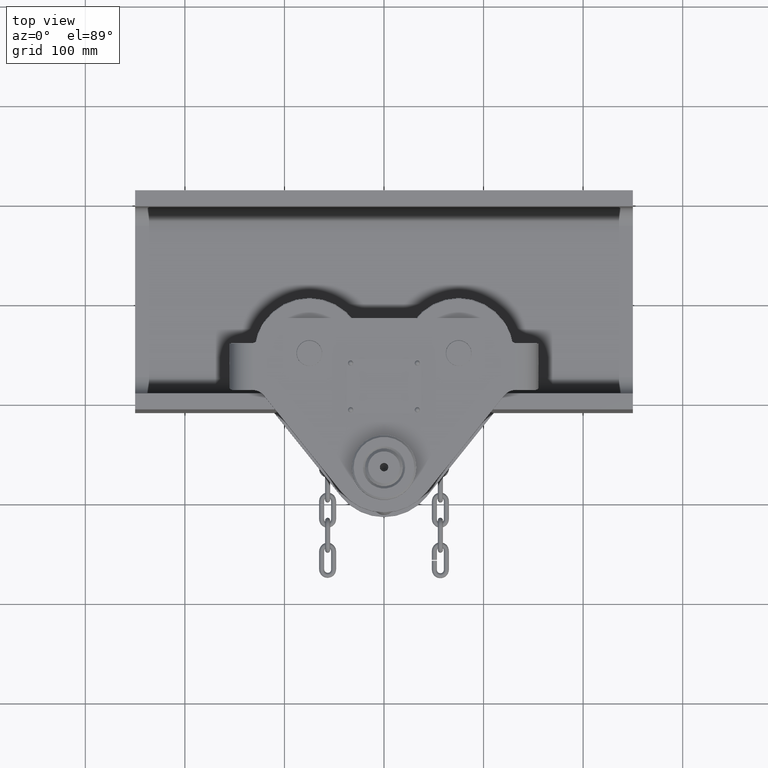
[diagram: clean part render]
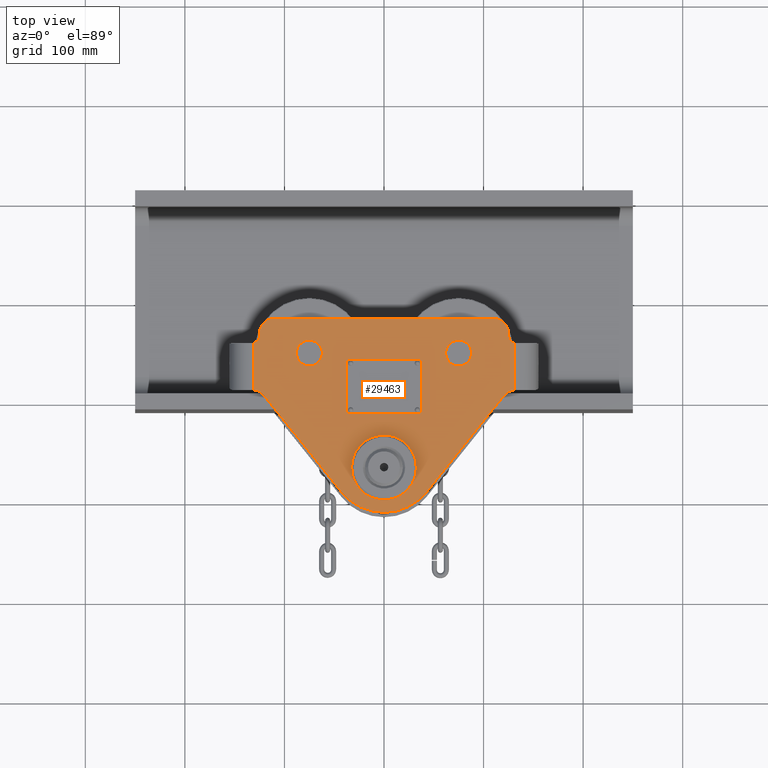
[diagram: same view with one face highlighted and labeled with its STEP entity id]
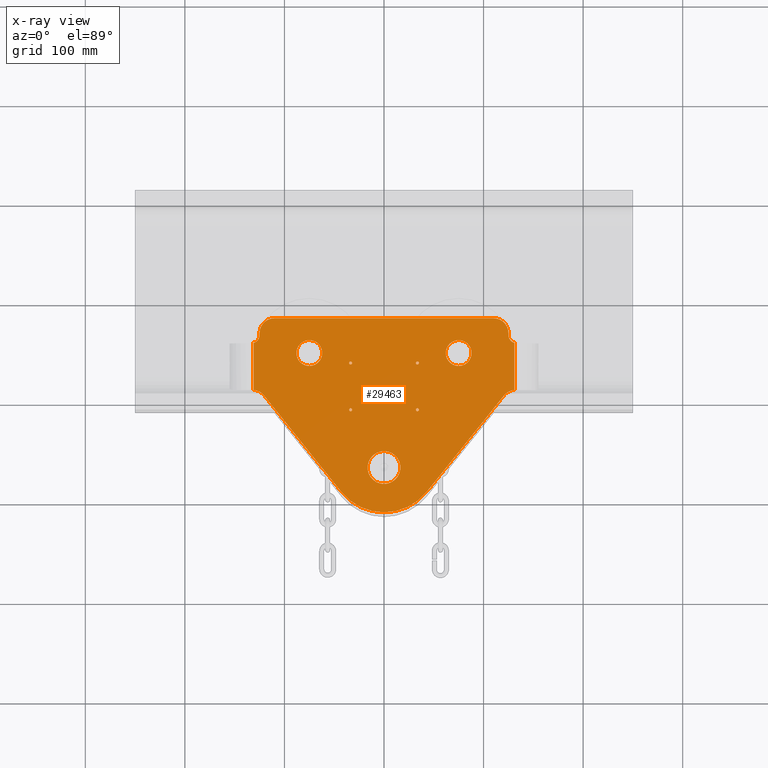
[diagram: x-ray of the same camera — body ghosted, the highlighted face saturated]
A machine part, top view. The second image highlights one B-rep face of the part: STEP entity #29463.
The next image is the same camera in x-ray: the body ghosted, the highlighted face saturated — about 0% of this face is hidden behind the body in this view.
In plain terms, the highlighted planar face has unit normal (0, -0, 1).
Its self-contained STEP definition (entity closure, byte-faithful):
#475 = DIRECTION ( 'NONE',  ( -9.730691817871628600E-017, 1.774864183143355500E-016, -1.000000000000000000 ) ) ;
#587 = DIRECTION ( 'NONE',  ( 9.730691817871628600E-017, -1.774864183143355500E-016, 1.000000000000000000 ) ) ;
#1143 = VERTEX_POINT ( 'NONE', #16429 ) ;
#2060 = DIRECTION ( 'NONE',  ( -1.067522139062650100E-015, -1.000000000000000000, 0.0000000000000000000 ) ) ;
#2212 = EDGE_CURVE ( 'NONE', #72225, #76424, #64638, .T. ) ;
#2321 = AXIS2_PLACEMENT_3D ( 'NONE', #51194, #41347, #99940 ) ;
#2724 = DIRECTION ( 'NONE',  ( 1.443289932012703300E-015, 1.000000000000000000, 0.0000000000000000000 ) ) ;
#3012 = ORIENTED_EDGE ( 'NONE', *, *, #18271, .F. ) ;
#3123 = ORIENTED_EDGE ( 'NONE', *, *, #49417, .F. ) ;
#3150 = CARTESIAN_POINT ( 'NONE',  ( 130.9999999999998300, -214.0000000000000900, 136.9999999999990600 ) ) ;
#3495 = AXIS2_PLACEMENT_3D ( 'NONE', #44481, #27608, #2724 ) ;
#3616 = EDGE_CURVE ( 'NONE', #24575, #99488, #63309, .T. ) ;
#3738 = EDGE_CURVE ( 'NONE', #85154, #54498, #92023, .T. ) ;
#4097 = AXIS2_PLACEMENT_3D ( 'NONE', #57172, #15291, #74434 ) ;
#4120 = CARTESIAN_POINT ( 'NONE',  ( -125.0000000000003300, -33.99999999999965200, 136.9999999999990100 ) ) ;
#4330 = ORIENTED_EDGE ( 'NONE', *, *, #99922, .T. ) ;
#4392 = VERTEX_POINT ( 'NONE', #43280 ) ;
#5109 = DIRECTION ( 'NONE',  ( -9.730691817871628600E-017, 1.774864183143355500E-016, -1.000000000000000000 ) ) ;
#5217 = CIRCLE ( 'NONE', #5786, 1.500000000000001300 ) ;
#5371 = CIRCLE ( 'NONE', #52925, 1.500000000000001300 ) ;
#5786 = AXIS2_PLACEMENT_3D ( 'NONE', #31921, #6247, #49451 ) ;
#5817 = DIRECTION ( 'NONE',  ( -1.067522139062650700E-015, -1.000000000000000000, 0.0000000000000000000 ) ) ;
#6187 = CIRCLE ( 'NONE', #80228, 1.500000000000001300 ) ;
#6202 = LINE ( 'NONE', #38648, #92732 ) ;
#6229 = CARTESIAN_POINT ( 'NONE',  ( -110.0000000000003100, -18.99999999999968000, 136.9999999999990300 ) ) ;
#6247 = DIRECTION ( 'NONE',  ( 9.730691817871628600E-017, -1.774864183143355500E-016, 1.000000000000000000 ) ) ;
#6566 = EDGE_LOOP ( 'NONE', ( #77121, #103936 ) ) ;
#6828 = EDGE_CURVE ( 'NONE', #51879, #48800, #48358, .T. ) ;
#8921 = FACE_BOUND ( 'NONE', #41427, .T. ) ;
#10118 = CARTESIAN_POINT ( 'NONE',  ( -42.91389644517620600, -193.4005449359849800, 136.9999999999989500 ) ) ;
#10310 = CARTESIAN_POINT ( 'NONE',  ( -110.0000000000003100, -33.99999999999970900, 136.9999999999990100 ) ) ;
#10432 = EDGE_CURVE ( 'NONE', #43914, #104140, #5371, .T. ) ;
#11243 = CARTESIAN_POINT ( 'NONE',  ( -4.659345773015377900E-013, -185.4999999999995500, 136.9999999999994600 ) ) ;
#11310 = ORIENTED_EDGE ( 'NONE', *, *, #34147, .F. ) ;
#11500 = CIRCLE ( 'NONE', #75296, 12.99999999999999800 ) ;
#12137 = VERTEX_POINT ( 'NONE', #25489 ) ;
#12688 = VERTEX_POINT ( 'NONE', #19086 ) ;
#12807 = CIRCLE ( 'NONE', #48147, 15.00000000000000700 ) ;
#13204 = VERTEX_POINT ( 'NONE', #43424 ) ;
#13870 = CARTESIAN_POINT ( 'NONE',  ( -133.0000000000003400, -35.99999999999964500, 136.9999999999990100 ) ) ;
#14709 = ORIENTED_EDGE ( 'NONE', *, *, #6828, .T. ) ;
#14965 = EDGE_CURVE ( 'NONE', #85690, #51879, #6202, .T. ) ;
#15161 = VERTEX_POINT ( 'NONE', #59508 ) ;
#15291 = DIRECTION ( 'NONE',  ( 9.730691817871628600E-017, -1.774864183143355500E-016, 1.000000000000000000 ) ) ;
#15568 = EDGE_CURVE ( 'NONE', #88672, #76719, #60024, .T. ) ;
#15802 = EDGE_LOOP ( 'NONE', ( #3012, #91124 ) ) ;
#16429 = CARTESIAN_POINT ( 'NONE',  ( -33.50000000000027700, -112.4999999999998000, 136.9999999999989500 ) ) ;
#16644 = AXIS2_PLACEMENT_3D ( 'NONE', #13870, #5109, #37425 ) ;
#16786 = FACE_OUTER_BOUND ( 'NONE', #45661, .T. ) ;
#17599 = LINE ( 'NONE', #61741, #93649 ) ;
#18271 = EDGE_CURVE ( 'NONE', #104140, #43914, #5217, .T. ) ;
#19086 = CARTESIAN_POINT ( 'NONE',  ( -4.202749259718530100E-013, -152.4999999999995200, 136.9999999999994600 ) ) ;
#19606 = DIRECTION ( 'NONE',  ( 1.443289932012703300E-015, 1.000000000000000000, 0.0000000000000000000 ) ) ;
#19842 = DIRECTION ( 'NONE',  ( 1.443289932012703500E-015, 1.000000000000000000, 1.774864183143377200E-016 ) ) ;
#21019 = ORIENTED_EDGE ( 'NONE', *, *, #46883, .T. ) ;
#21751 = CARTESIAN_POINT ( 'NONE',  ( 74.99999999999955900, -54.00000000000005000, 136.9999999999996000 ) ) ;
#21822 = DIRECTION ( 'NONE',  ( 9.730691817871628600E-017, -1.774864183143355500E-016, 1.000000000000000000 ) ) ;
#22039 = FACE_BOUND ( 'NONE', #56481, .T. ) ;
#23086 = CARTESIAN_POINT ( 'NONE',  ( 133.0000000000000900, -36.00000000000004300, 136.9999999999989200 ) ) ;
#23740 = CARTESIAN_POINT ( 'NONE',  ( 74.99999999999955900, -54.00000000000005000, 136.9999999999996000 ) ) ;
#24409 = CARTESIAN_POINT ( 'NONE',  ( 132.2002743063648300, -105.9999999999998200, 136.9999999999988900 ) ) ;
#24492 = DIRECTION ( 'NONE',  ( 1.000000000000000000, -1.554312234475219200E-015, -9.730691817871632200E-017 ) ) ;
#24502 = DIRECTION ( 'NONE',  ( 0.0000000000000000000, 1.000000000000000000, 0.0000000000000000000 ) ) ;
#24575 = VERTEX_POINT ( 'NONE', #33834 ) ;
#25233 = CARTESIAN_POINT ( 'NONE',  ( -33.50000000000027700, -110.9999999999997900, 136.9999999999989500 ) ) ;
#25489 = CARTESIAN_POINT ( 'NONE',  ( -33.50000000000027700, -109.4999999999997900, 136.9999999999989500 ) ) ;
#25859 = EDGE_CURVE ( 'NONE', #47567, #76424, #99712, .T. ) ;
#26397 = CARTESIAN_POINT ( 'NONE',  ( 42.91389644517550300, -193.4005449359846400, 136.9999999999988600 ) ) ;
#26500 = CARTESIAN_POINT ( 'NONE',  ( -4.440892098500626200E-013, -158.9999999999995200, 136.9999999999995200 ) ) ;
#27154 = EDGE_CURVE ( 'NONE', #12688, #40230, #58735, .T. ) ;
#27608 = DIRECTION ( 'NONE',  ( 9.730691817871628600E-017, -1.774864183143355500E-016, 1.000000000000000000 ) ) ;
#28744 = DIRECTION ( 'NONE',  ( 1.443289932012703500E-015, 1.000000000000000000, 1.774864183143377200E-016 ) ) ;
#29294 = AXIS2_PLACEMENT_3D ( 'NONE', #69256, #103547, #52624 ) ;
#29374 = DIRECTION ( 'NONE',  ( -1.443289932012703500E-015, -1.000000000000000000, -1.774864183143377200E-016 ) ) ;
#29463 = ADVANCED_FACE ( 'NONE', ( #37787, #82385, #105963, #22039, #83754, #61503, #8921, #16786 ), #101398, .T. ) ;
#30062 = DIRECTION ( 'NONE',  ( 0.6254644533815471000, 0.7802526626395597200, 7.762223208322747500E-017 ) ) ;
#30787 = CARTESIAN_POINT ( 'NONE',  ( 125.0000000000000900, -34.00000000000004300, 136.9999999999989200 ) ) ;
#31264 = DIRECTION ( 'NONE',  ( 9.730691817871628600E-017, -1.774864183143355500E-016, 1.000000000000000000 ) ) ;
#31921 = CARTESIAN_POINT ( 'NONE',  ( -33.50000000000024900, -63.99999999999980800, 136.9999999999996000 ) ) ;
#32207 = DIRECTION ( 'NONE',  ( 1.850371707708592400E-015, 1.000000000000000000, 0.0000000000000000000 ) ) ;
#32346 = CIRCLE ( 'NONE', #73481, 15.00000000000001400 ) ;
#33834 = CARTESIAN_POINT ( 'NONE',  ( 120.4964843667720700, -96.61803319927661000, 136.9999999999994000 ) ) ;
#34009 = EDGE_CURVE ( 'NONE', #12137, #1143, #105838, .T. ) ;
#34147 = EDGE_CURVE ( 'NONE', #1143, #12137, #6187, .T. ) ;
#34541 = ORIENTED_EDGE ( 'NONE', *, *, #3616, .T. ) ;
#34681 = CARTESIAN_POINT ( 'NONE',  ( -4.440892098500626200E-013, -168.9999999999995500, 136.9999999999994600 ) ) ;
#35180 = CARTESIAN_POINT ( 'NONE',  ( -33.50000000000024900, -62.49999999999980800, 136.9999999999996000 ) ) ;
#37425 = DIRECTION ( 'NONE',  ( 0.0000000000000000000, 1.000000000000000000, 0.0000000000000000000 ) ) ;
#37787 = FACE_BOUND ( 'NONE', #15802, .T. ) ;
#38455 = ORIENTED_EDGE ( 'NONE', *, *, #27154, .F. ) ;
#38648 = CARTESIAN_POINT ( 'NONE',  ( -120.4964843667725200, -96.61803319927653900, 136.9999999999995700 ) ) ;
#38684 = DIRECTION ( 'NONE',  ( -9.730691817871628600E-017, 1.774864183143355500E-016, -1.000000000000000000 ) ) ;
#38817 = EDGE_CURVE ( 'NONE', #60735, #107720, #81289, .T. ) ;
#40230 = VERTEX_POINT ( 'NONE', #11243 ) ;
#40738 = DIRECTION ( 'NONE',  ( -1.067522139062650100E-015, -1.000000000000000000, 0.0000000000000000000 ) ) ;
#40932 = DIRECTION ( 'NONE',  ( -9.730691817871628600E-017, 1.774864183143355500E-016, -1.000000000000000000 ) ) ;
#41347 = DIRECTION ( 'NONE',  ( 9.730691817871628600E-017, -1.774864183143378600E-016, 1.000000000000000000 ) ) ;
#41427 = EDGE_LOOP ( 'NONE', ( #38455, #3123 ) ) ;
#42560 = ORIENTED_EDGE ( 'NONE', *, *, #58847, .T. ) ;
#42977 = CARTESIAN_POINT ( 'NONE',  ( -131.0000000000003400, -43.74596669241446300, 136.9999999999990100 ) ) ;
#43280 = CARTESIAN_POINT ( 'NONE',  ( 33.49999999999964500, -112.4999999999997200, 136.9999999999989500 ) ) ;
#43392 = VECTOR ( 'NONE', #24492, 1000.000000000000000 ) ;
#43424 = CARTESIAN_POINT ( 'NONE',  ( 74.99999999999957400, -41.00000000000005000, 136.9999999999996000 ) ) ;
#43914 = VERTEX_POINT ( 'NONE', #47246 ) ;
#44481 = CARTESIAN_POINT ( 'NONE',  ( -4.440892098500626200E-013, -168.9999999999995500, 136.9999999999994600 ) ) ;
#44678 = EDGE_CURVE ( 'NONE', #99488, #15161, #103049, .T. ) ;
#44949 = ORIENTED_EDGE ( 'NONE', *, *, #34009, .F. ) ;
#45661 = EDGE_LOOP ( 'NONE', ( #4330, #42560, #81008, #97156, #105836, #14709, #75047, #34541, #73853, #59660, #95890, #45726, #58769, #107786 ) ) ;
#45726 = ORIENTED_EDGE ( 'NONE', *, *, #2212, .T. ) ;
#45871 = CIRCLE ( 'NONE', #48077, 12.99999999999999800 ) ;
#46120 = DIRECTION ( 'NONE',  ( 0.0000000000000000000, 1.000000000000000000, 0.0000000000000000000 ) ) ;
#46361 = CIRCLE ( 'NONE', #69871, 8.000000000000003600 ) ;
#46770 = VERTEX_POINT ( 'NONE', #96173 ) ;
#46883 = EDGE_CURVE ( 'NONE', #107709, #13204, #45871, .T. ) ;
#47020 = DIRECTION ( 'NONE',  ( 0.6254644533815455500, -0.7802526626395609500, -1.993462688610136700E-016 ) ) ;
#47246 = CARTESIAN_POINT ( 'NONE',  ( -33.50000000000024900, -65.49999999999981500, 136.9999999999996000 ) ) ;
#47567 = VERTEX_POINT ( 'NONE', #6229 ) ;
#48077 = AXIS2_PLACEMENT_3D ( 'NONE', #21751, #38684, #70671 ) ;
#48147 = AXIS2_PLACEMENT_3D ( 'NONE', #10310, #77493, #103383 ) ;
#48358 = CIRCLE ( 'NONE', #92384, 55.00000000000002100 ) ;
#48800 = VERTEX_POINT ( 'NONE', #26397 ) ;
#49417 = EDGE_CURVE ( 'NONE', #40230, #12688, #68110, .T. ) ;
#49451 = DIRECTION ( 'NONE',  ( 0.0000000000000000000, 1.000000000000000000, 0.0000000000000000000 ) ) ;
#49974 = LINE ( 'NONE', #96373, #86737 ) ;
#50620 = VERTEX_POINT ( 'NONE', #88555 ) ;
#50680 = DIRECTION ( 'NONE',  ( 1.443289932012703700E-015, 1.000000000000000000, 0.0000000000000000000 ) ) ;
#50757 = DIRECTION ( 'NONE',  ( 1.850371707708593200E-015, 1.000000000000000000, 0.0000000000000000000 ) ) ;
#51194 = CARTESIAN_POINT ( 'NONE',  ( 130.9999999999998300, -214.0000000000000900, 136.9999999999990600 ) ) ;
#51879 = VERTEX_POINT ( 'NONE', #10118 ) ;
#52624 = DIRECTION ( 'NONE',  ( 0.0000000000000000000, 1.000000000000000000, 0.0000000000000000000 ) ) ;
#52925 = AXIS2_PLACEMENT_3D ( 'NONE', #87866, #78764, #46120 ) ;
#54498 = VERTEX_POINT ( 'NONE', #102390 ) ;
#55945 = DIRECTION ( 'NONE',  ( 0.0000000000000000000, 1.000000000000000000, 0.0000000000000000000 ) ) ;
#56057 = DIRECTION ( 'NONE',  ( -9.730691817871628600E-017, 1.774864183143355500E-016, -1.000000000000000000 ) ) ;
#56417 = EDGE_CURVE ( 'NONE', #48800, #24575, #49974, .T. ) ;
#56481 = EDGE_LOOP ( 'NONE', ( #86619, #96943 ) ) ;
#57172 = CARTESIAN_POINT ( 'NONE',  ( 33.49999999999964500, -110.9999999999997200, 136.9999999999989500 ) ) ;
#58569 = DIRECTION ( 'NONE',  ( -9.730691817871628600E-017, 1.774864183143355500E-016, -1.000000000000000000 ) ) ;
#58735 = CIRCLE ( 'NONE', #95347, 16.50000000000001400 ) ;
#58769 = ORIENTED_EDGE ( 'NONE', *, *, #25859, .F. ) ;
#58847 = EDGE_CURVE ( 'NONE', #98331, #76719, #105367, .T. ) ;
#59508 = CARTESIAN_POINT ( 'NONE',  ( 131.0000000000000900, -43.74596669241490300, 136.9999999999989200 ) ) ;
#59660 = ORIENTED_EDGE ( 'NONE', *, *, #92011, .T. ) ;
#59668 = CARTESIAN_POINT ( 'NONE',  ( 110.0000000000000900, -33.99999999999998600, 136.9999999999989200 ) ) ;
#60024 = LINE ( 'NONE', #90123, #82301 ) ;
#60548 = AXIS2_PLACEMENT_3D ( 'NONE', #24409, #58569, #83131 ) ;
#60735 = VERTEX_POINT ( 'NONE', #82605 ) ;
#61355 = AXIS2_PLACEMENT_3D ( 'NONE', #100766, #475, #40738 ) ;
#61503 = FACE_BOUND ( 'NONE', #67156, .T. ) ;
#61741 = CARTESIAN_POINT ( 'NONE',  ( 125.0000000000000900, -34.00000000000004300, 136.9999999999989200 ) ) ;
#62633 = EDGE_CURVE ( 'NONE', #4392, #98138, #81014, .T. ) ;
#62772 = EDGE_LOOP ( 'NONE', ( #44949, #11310 ) ) ;
#63309 = CIRCLE ( 'NONE', #60548, 15.00000000000001400 ) ;
#64352 = EDGE_CURVE ( 'NONE', #54498, #85154, #84227, .T. ) ;
#64638 = CIRCLE ( 'NONE', #74397, 15.00000000000000700 ) ;
#65896 = CARTESIAN_POINT ( 'NONE',  ( -131.0000000000004000, -91.04809906435009700, 136.9999999999995700 ) ) ;
#66023 = DIRECTION ( 'NONE',  ( -9.730691817871628600E-017, 1.774864183143355500E-016, -1.000000000000000000 ) ) ;
#67092 = EDGE_CURVE ( 'NONE', #98138, #4392, #80728, .T. ) ;
#67156 = EDGE_LOOP ( 'NONE', ( #21019, #93627 ) ) ;
#68110 = CIRCLE ( 'NONE', #3495, 16.50000000000001400 ) ;
#69221 = DIRECTION ( 'NONE',  ( 9.730691817871628600E-017, -1.774864183143355500E-016, 1.000000000000000000 ) ) ;
#69256 = CARTESIAN_POINT ( 'NONE',  ( 33.49999999999970900, -63.99999999999965200, 136.9999999999995500 ) ) ;
#69713 = CIRCLE ( 'NONE', #29294, 1.500000000000001300 ) ;
#69871 = AXIS2_PLACEMENT_3D ( 'NONE', #23086, #107367, #98179 ) ;
#69978 = DIRECTION ( 'NONE',  ( 9.730691817871628600E-017, -1.774864183143355500E-016, 1.000000000000000000 ) ) ;
#70671 = DIRECTION ( 'NONE',  ( -1.067522139062650700E-015, -1.000000000000000000, 0.0000000000000000000 ) ) ;
#70683 = CARTESIAN_POINT ( 'NONE',  ( 110.0000000000001000, -19.00000000000007100, 136.9999999999989500 ) ) ;
#70948 = CARTESIAN_POINT ( 'NONE',  ( 33.49999999999964500, -109.4999999999997200, 136.9999999999989500 ) ) ;
#72225 = VERTEX_POINT ( 'NONE', #30787 ) ;
#73481 = AXIS2_PLACEMENT_3D ( 'NONE', #74108, #66023, #32207 ) ;
#73853 = ORIENTED_EDGE ( 'NONE', *, *, #44678, .T. ) ;
#74108 = CARTESIAN_POINT ( 'NONE',  ( -132.2002743063659400, -105.9999999999997000, 136.9999999999990100 ) ) ;
#74397 = AXIS2_PLACEMENT_3D ( 'NONE', #59668, #69221, #50757 ) ;
#74434 = DIRECTION ( 'NONE',  ( 0.0000000000000000000, 1.000000000000000000, 0.0000000000000000000 ) ) ;
#74676 = EDGE_CURVE ( 'NONE', #13204, #107709, #11500, .T. ) ;
#74809 = CARTESIAN_POINT ( 'NONE',  ( 74.99999999999954500, -67.00000000000004300, 136.9999999999996000 ) ) ;
#75047 = ORIENTED_EDGE ( 'NONE', *, *, #56417, .T. ) ;
#75296 = AXIS2_PLACEMENT_3D ( 'NONE', #23740, #56057, #5817 ) ;
#76424 = VERTEX_POINT ( 'NONE', #70683 ) ;
#76719 = VERTEX_POINT ( 'NONE', #42977 ) ;
#77121 = ORIENTED_EDGE ( 'NONE', *, *, #83891, .F. ) ;
#77493 = DIRECTION ( 'NONE',  ( 9.730691817871628600E-017, -1.774864183143355500E-016, 1.000000000000000000 ) ) ;
#78764 = DIRECTION ( 'NONE',  ( 9.730691817871628600E-017, -1.774864183143355500E-016, 1.000000000000000000 ) ) ;
#79450 = AXIS2_PLACEMENT_3D ( 'NONE', #84586, #40932, #2060 ) ;
#79738 = CARTESIAN_POINT ( 'NONE',  ( -75.00000000000032700, -40.99999999999968700, 136.9999999999996300 ) ) ;
#80184 = CARTESIAN_POINT ( 'NONE',  ( 33.49999999999970900, -63.99999999999965200, 136.9999999999995500 ) ) ;
#80228 = AXIS2_PLACEMENT_3D ( 'NONE', #25233, #82500, #24502 ) ;
#80728 = CIRCLE ( 'NONE', #89030, 1.500000000000001300 ) ;
#81008 = ORIENTED_EDGE ( 'NONE', *, *, #15568, .F. ) ;
#81014 = CIRCLE ( 'NONE', #4097, 1.500000000000001300 ) ;
#81050 = CARTESIAN_POINT ( 'NONE',  ( -33.50000000000027700, -110.9999999999997900, 136.9999999999989500 ) ) ;
#81289 = CIRCLE ( 'NONE', #85808, 1.500000000000001300 ) ;
#82130 = CARTESIAN_POINT ( 'NONE',  ( 33.49999999999970900, -62.49999999999965200, 136.9999999999995500 ) ) ;
#82301 = VECTOR ( 'NONE', #98511, 1000.000000000000000 ) ;
#82385 = FACE_BOUND ( 'NONE', #6566, .T. ) ;
#82500 = DIRECTION ( 'NONE',  ( 9.730691817871628600E-017, -1.774864183143355500E-016, 1.000000000000000000 ) ) ;
#82605 = CARTESIAN_POINT ( 'NONE',  ( 33.49999999999970900, -65.49999999999965900, 136.9999999999995500 ) ) ;
#83131 = DIRECTION ( 'NONE',  ( 1.850371707708592400E-015, 1.000000000000000000, 0.0000000000000000000 ) ) ;
#83753 = AXIS2_PLACEMENT_3D ( 'NONE', #81050, #106638, #90152 ) ;
#83754 = FACE_BOUND ( 'NONE', #104729, .T. ) ;
#83891 = EDGE_CURVE ( 'NONE', #107720, #60735, #69713, .T. ) ;
#84227 = CIRCLE ( 'NONE', #61355, 13.00000000000000500 ) ;
#84586 = CARTESIAN_POINT ( 'NONE',  ( -75.00000000000034100, -53.99999999999969400, 136.9999999999996300 ) ) ;
#85154 = VERTEX_POINT ( 'NONE', #79738 ) ;
#85690 = VERTEX_POINT ( 'NONE', #104807 ) ;
#85808 = AXIS2_PLACEMENT_3D ( 'NONE', #80184, #21822, #55945 ) ;
#85815 = LINE ( 'NONE', #4120, #102906 ) ;
#86619 = ORIENTED_EDGE ( 'NONE', *, *, #67092, .F. ) ;
#86737 = VECTOR ( 'NONE', #30062, 999.9999999999998900 ) ;
#87866 = CARTESIAN_POINT ( 'NONE',  ( -33.50000000000024900, -63.99999999999980800, 136.9999999999996000 ) ) ;
#88555 = CARTESIAN_POINT ( 'NONE',  ( 125.0000000000000900, -36.00000000000002800, 136.9999999999989200 ) ) ;
#88672 = VERTEX_POINT ( 'NONE', #65896 ) ;
#89030 = AXIS2_PLACEMENT_3D ( 'NONE', #98271, #31264, #106732 ) ;
#90123 = CARTESIAN_POINT ( 'NONE',  ( -131.0000000000005100, -213.9999999999992900, 136.9999999999989800 ) ) ;
#90152 = DIRECTION ( 'NONE',  ( 0.0000000000000000000, 1.000000000000000000, 0.0000000000000000000 ) ) ;
#91124 = ORIENTED_EDGE ( 'NONE', *, *, #10432, .F. ) ;
#91305 = CARTESIAN_POINT ( 'NONE',  ( -125.0000000000003300, -35.99999999999961600, 136.9999999999990100 ) ) ;
#92011 = EDGE_CURVE ( 'NONE', #15161, #50620, #46361, .T. ) ;
#92023 = CIRCLE ( 'NONE', #79450, 13.00000000000000500 ) ;
#92384 = AXIS2_PLACEMENT_3D ( 'NONE', #26500, #587, #50680 ) ;
#92732 = VECTOR ( 'NONE', #47020, 1000.000000000000100 ) ;
#93627 = ORIENTED_EDGE ( 'NONE', *, *, #74676, .T. ) ;
#93649 = VECTOR ( 'NONE', #19842, 1000.000000000000000 ) ;
#94772 = EDGE_CURVE ( 'NONE', #88672, #85690, #32346, .T. ) ;
#95347 = AXIS2_PLACEMENT_3D ( 'NONE', #34681, #69978, #19606 ) ;
#95890 = ORIENTED_EDGE ( 'NONE', *, *, #99844, .T. ) ;
#96173 = CARTESIAN_POINT ( 'NONE',  ( -125.0000000000003300, -33.99999999999965200, 136.9999999999990100 ) ) ;
#96373 = CARTESIAN_POINT ( 'NONE',  ( 120.4964843667720700, -96.61803319927661000, 136.9999999999994000 ) ) ;
#96943 = ORIENTED_EDGE ( 'NONE', *, *, #62633, .F. ) ;
#97156 = ORIENTED_EDGE ( 'NONE', *, *, #94772, .T. ) ;
#98138 = VERTEX_POINT ( 'NONE', #70948 ) ;
#98179 = DIRECTION ( 'NONE',  ( 0.0000000000000000000, 1.000000000000000000, 0.0000000000000000000 ) ) ;
#98271 = CARTESIAN_POINT ( 'NONE',  ( 33.49999999999964500, -110.9999999999997200, 136.9999999999989500 ) ) ;
#98331 = VERTEX_POINT ( 'NONE', #91305 ) ;
#98511 = DIRECTION ( 'NONE',  ( 1.443289932012703500E-015, 1.000000000000000000, 1.774864183143377200E-016 ) ) ;
#99488 = VERTEX_POINT ( 'NONE', #105326 ) ;
#99598 = ORIENTED_EDGE ( 'NONE', *, *, #64352, .T. ) ;
#99712 = LINE ( 'NONE', #100334, #43392 ) ;
#99844 = EDGE_CURVE ( 'NONE', #50620, #72225, #17599, .T. ) ;
#99922 = EDGE_CURVE ( 'NONE', #46770, #98331, #85815, .T. ) ;
#99940 = DIRECTION ( 'NONE',  ( 1.443289932012703500E-015, 1.000000000000000000, 1.774864183143377200E-016 ) ) ;
#100334 = CARTESIAN_POINT ( 'NONE',  ( 131.0000000000001100, -19.00000000000013500, 136.9999999999989500 ) ) ;
#100766 = CARTESIAN_POINT ( 'NONE',  ( -75.00000000000034100, -53.99999999999969400, 136.9999999999996300 ) ) ;
#101398 = PLANE ( 'NONE',  #2321 ) ;
#102390 = CARTESIAN_POINT ( 'NONE',  ( -75.00000000000035500, -66.99999999999970200, 136.9999999999996300 ) ) ;
#102423 = ORIENTED_EDGE ( 'NONE', *, *, #3738, .T. ) ;
#102906 = VECTOR ( 'NONE', #29374, 1000.000000000000000 ) ;
#103049 = LINE ( 'NONE', #3150, #108294 ) ;
#103383 = DIRECTION ( 'NONE',  ( -1.850371707708593200E-015, -1.000000000000000000, 0.0000000000000000000 ) ) ;
#103547 = DIRECTION ( 'NONE',  ( 9.730691817871628600E-017, -1.774864183143355500E-016, 1.000000000000000000 ) ) ;
#103936 = ORIENTED_EDGE ( 'NONE', *, *, #38817, .F. ) ;
#104140 = VERTEX_POINT ( 'NONE', #35180 ) ;
#104729 = EDGE_LOOP ( 'NONE', ( #99598, #102423 ) ) ;
#104807 = CARTESIAN_POINT ( 'NONE',  ( -120.4964843667725200, -96.61803319927653900, 136.9999999999995700 ) ) ;
#105326 = CARTESIAN_POINT ( 'NONE',  ( 131.0000000000000000, -91.04809906435021100, 136.9999999999994000 ) ) ;
#105367 = CIRCLE ( 'NONE', #16644, 8.000000000000003600 ) ;
#105836 = ORIENTED_EDGE ( 'NONE', *, *, #14965, .T. ) ;
#105838 = CIRCLE ( 'NONE', #83753, 1.500000000000001300 ) ;
#105963 = FACE_BOUND ( 'NONE', #62772, .T. ) ;
#105978 = EDGE_CURVE ( 'NONE', #47567, #46770, #12807, .T. ) ;
#106638 = DIRECTION ( 'NONE',  ( 9.730691817871628600E-017, -1.774864183143355500E-016, 1.000000000000000000 ) ) ;
#106732 = DIRECTION ( 'NONE',  ( 0.0000000000000000000, 1.000000000000000000, 0.0000000000000000000 ) ) ;
#107367 = DIRECTION ( 'NONE',  ( -9.730691817871628600E-017, 1.774864183143355500E-016, -1.000000000000000000 ) ) ;
#107709 = VERTEX_POINT ( 'NONE', #74809 ) ;
#107720 = VERTEX_POINT ( 'NONE', #82130 ) ;
#107786 = ORIENTED_EDGE ( 'NONE', *, *, #105978, .T. ) ;
#108294 = VECTOR ( 'NONE', #28744, 1000.000000000000000 ) ;